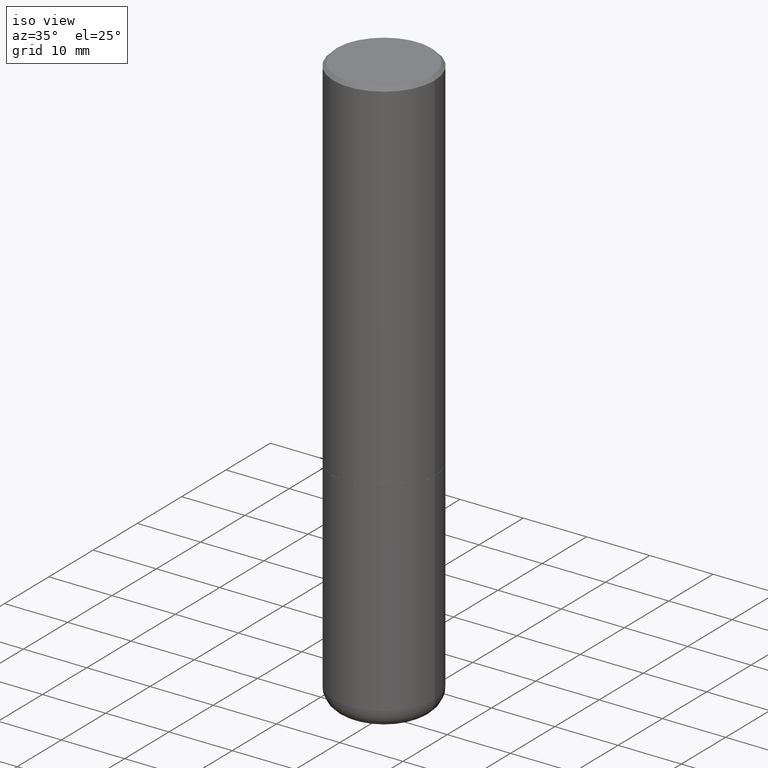
[diagram: clean part render]
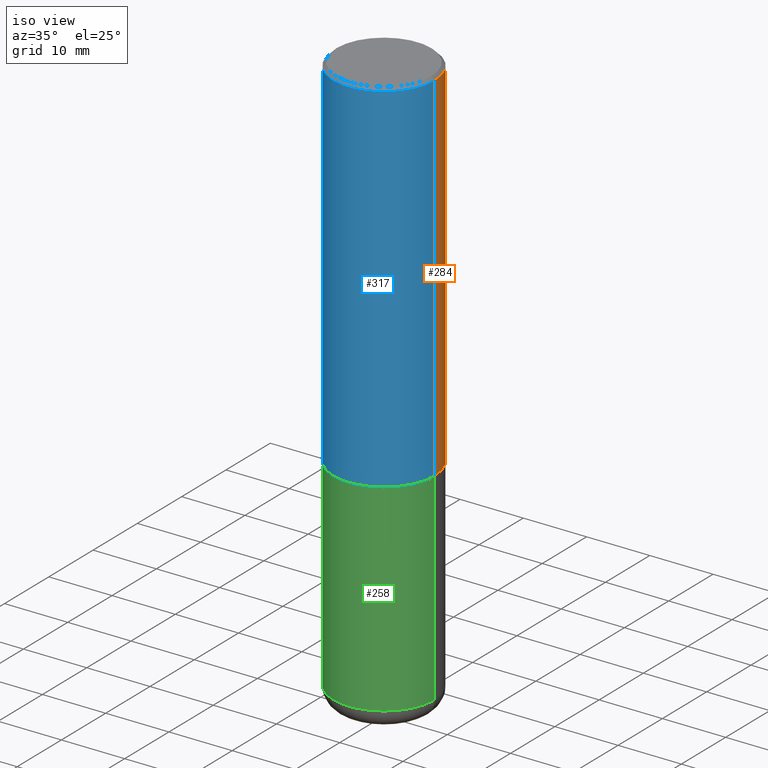
[diagram: same view with three faces highlighted in distinct colors, each labeled with its STEP entity id]
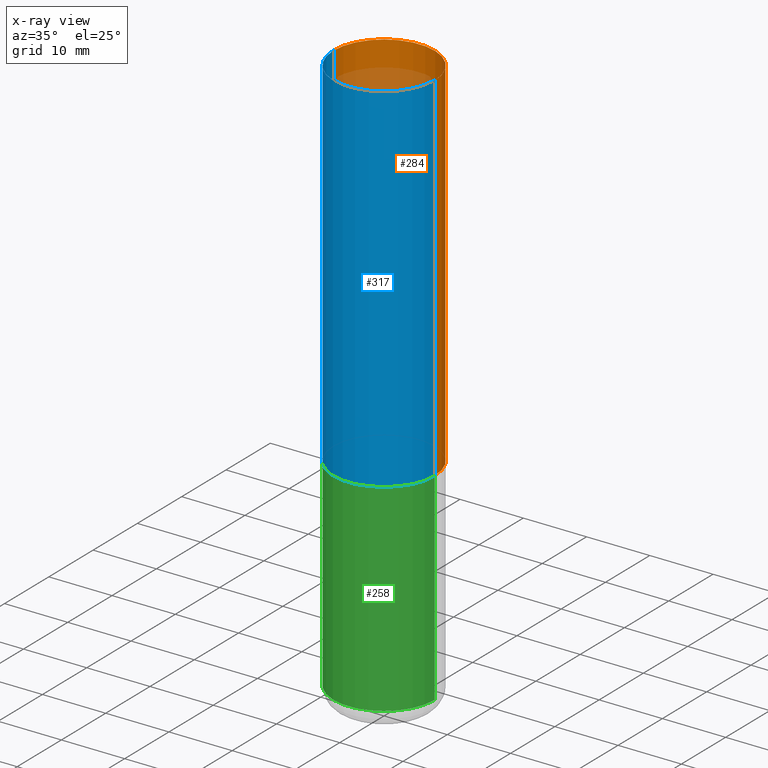
[diagram: x-ray of the same camera — body ghosted, the three highlighted faces saturated]
A machine part, iso view with three faces highlighted in distinct colors.
The next image is the same camera in x-ray (body ghosted, the three faces saturated) — at least one of them is partly hidden behind the body in this view.
Their STEP definitions:

[orange] entity #284 — the highlighted cylindrical surface (partial cylindrical patch) has radius 7.9997 mm, axis along (-0, 0, 1).
#18 = EDGE_CURVE ( 'NONE', #93, #227, #362, .T. ) ;
#27 = DIRECTION ( 'NONE',  ( -2.445468806185136597E-29, 3.491481338843145583E-15, 1.000000000000000000 ) ) ;
#34 = CARTESIAN_POINT ( 'NONE',  ( 0.3149500000000000077, -2.230543471175007450E-15, -0.02000000000000006981 ) ) ;
#62 = CARTESIAN_POINT ( 'NONE',  ( 5.485186532273261485E-29, -7.831392643025175821E-15, -2.242999999999999883 ) ) ;
#74 = DIRECTION ( 'NONE',  ( 1.000000000000000000, -6.982962677686266711E-15, 0.000000000000000000 ) ) ;
#75 = AXIS2_PLACEMENT_3D ( 'NONE', #62, #27, #384 ) ;
#93 = VERTEX_POINT ( 'NONE', #380 ) ;
#97 = DIRECTION ( 'NONE',  ( -2.445468806185136877E-29, 3.491481338843145188E-15, 1.000000000000000000 ) ) ;
#124 = CYLINDRICAL_SURFACE ( 'NONE', #316, 0.3149500000000001743 ) ;
#162 = EDGE_LOOP ( 'NONE', ( #209, #274, #338, #204 ) ) ;
#174 = CARTESIAN_POINT ( 'NONE',  ( -0.3149500000000002853, -1.712756788624580222E-15, -2.242999999999999883 ) ) ;
#177 = LINE ( 'NONE', #261, #183 ) ;
#183 = VECTOR ( 'NONE', #390, 39.37007874015748143 ) ;
#200 = AXIS2_PLACEMENT_3D ( 'NONE', #275, #409, #74 ) ;
#204 = ORIENTED_EDGE ( 'NONE', *, *, #344, .F. ) ;
#209 = ORIENTED_EDGE ( 'NONE', *, *, #18, .T. ) ;
#210 = CIRCLE ( 'NONE', #200, 0.3149500000000000077 ) ;
#227 = VERTEX_POINT ( 'NONE', #174 ) ;
#253 = CARTESIAN_POINT ( 'NONE',  ( 0.3149500000000001743, -2.199284095337290660E-15, 1.535751875536930690E-29 ) ) ;
#261 = CARTESIAN_POINT ( 'NONE',  ( -0.3149500000000001743, 2.237854346276436774E-15, -1.549218606675783237E-29 ) ) ;
#266 = DIRECTION ( 'NONE',  ( -2.445468806185136597E-29, 3.491481338843145583E-15, 1.000000000000000000 ) ) ;
#274 = ORIENTED_EDGE ( 'NONE', *, *, #406, .T. ) ;
#275 = CARTESIAN_POINT ( 'NONE',  ( 4.890937612370289799E-31, -6.982962677686315028E-17, -0.02000000000000006981 ) ) ;
#278 = FACE_OUTER_BOUND ( 'NONE', #162, .T. ) ;
#279 = LINE ( 'NONE', #253, #385 ) ;
#284 = ADVANCED_FACE ( 'NONE', ( #278 ), #124, .T. ) ;
#300 = VERTEX_POINT ( 'NONE', #336 ) ;
#312 = VERTEX_POINT ( 'NONE', #34 ) ;
#316 = AXIS2_PLACEMENT_3D ( 'NONE', #366, #266, #329 ) ;
#329 = DIRECTION ( 'NONE',  ( 1.000000000000000000, -6.982962677686265922E-15, 4.876176775795935232E-29 ) ) ;
#336 = CARTESIAN_POINT ( 'NONE',  ( -0.3149500000000000077, 2.129454468560426573E-15, -0.02000000000000006981 ) ) ;
#338 = ORIENTED_EDGE ( 'NONE', *, *, #381, .F. ) ;
#344 = EDGE_CURVE ( 'NONE', #93, #312, #279, .T. ) ;
#362 = CIRCLE ( 'NONE', #75, 0.3149500000000002853 ) ;
#366 = CARTESIAN_POINT ( 'NONE',  ( 0.000000000000000000, 0.000000000000000000, 0.000000000000000000 ) ) ;
#380 = CARTESIAN_POINT ( 'NONE',  ( 0.3149500000000002853, -1.003067673836246727E-14, -2.242999999999999883 ) ) ;
#381 = EDGE_CURVE ( 'NONE', #312, #300, #210, .T. ) ;
#384 = DIRECTION ( 'NONE',  ( 1.000000000000000000, -6.982962677686267499E-15, 0.000000000000000000 ) ) ;
#385 = VECTOR ( 'NONE', #97, 39.37007874015748143 ) ;
#390 = DIRECTION ( 'NONE',  ( -2.445468806185136877E-29, 3.491481338843145188E-15, 1.000000000000000000 ) ) ;
#406 = EDGE_CURVE ( 'NONE', #227, #300, #177, .T. ) ;
#409 = DIRECTION ( 'NONE',  ( -2.445468806185136597E-29, 3.491481338843145583E-15, 1.000000000000000000 ) ) ;

[blue] entity #317 — the highlighted cylindrical surface (partial cylindrical patch) has radius 7.9997 mm, axis along (-0, 0, 1).
#34 = CARTESIAN_POINT ( 'NONE',  ( 0.3149500000000000077, -2.230543471175007450E-15, -0.02000000000000006981 ) ) ;
#45 = DIRECTION ( 'NONE',  ( -2.445468806185136597E-29, 3.491481338843145583E-15, 1.000000000000000000 ) ) ;
#54 = CARTESIAN_POINT ( 'NONE',  ( 4.890937612370289799E-31, -6.982962677686315028E-17, -0.02000000000000006981 ) ) ;
#93 = VERTEX_POINT ( 'NONE', #380 ) ;
#97 = DIRECTION ( 'NONE',  ( -2.445468806185136877E-29, 3.491481338843145188E-15, 1.000000000000000000 ) ) ;
#117 = DIRECTION ( 'NONE',  ( 1.000000000000000000, -6.982962677686266711E-15, 0.000000000000000000 ) ) ;
#119 = EDGE_LOOP ( 'NONE', ( #224, #371, #167, #416 ) ) ;
#133 = CIRCLE ( 'NONE', #216, 0.3149500000000002853 ) ;
#151 = AXIS2_PLACEMENT_3D ( 'NONE', #248, #375, #379 ) ;
#167 = ORIENTED_EDGE ( 'NONE', *, *, #344, .T. ) ;
#171 = DIRECTION ( 'NONE',  ( 1.000000000000000000, -6.982962677686267499E-15, 0.000000000000000000 ) ) ;
#174 = CARTESIAN_POINT ( 'NONE',  ( -0.3149500000000002853, -1.712756788624580222E-15, -2.242999999999999883 ) ) ;
#177 = LINE ( 'NONE', #261, #183 ) ;
#179 = DIRECTION ( 'NONE',  ( -2.445468806185136597E-29, 3.491481338843145583E-15, 1.000000000000000000 ) ) ;
#183 = VECTOR ( 'NONE', #390, 39.37007874015748143 ) ;
#199 = EDGE_CURVE ( 'NONE', #227, #93, #133, .T. ) ;
#216 = AXIS2_PLACEMENT_3D ( 'NONE', #326, #45, #171 ) ;
#224 = ORIENTED_EDGE ( 'NONE', *, *, #406, .F. ) ;
#227 = VERTEX_POINT ( 'NONE', #174 ) ;
#248 = CARTESIAN_POINT ( 'NONE',  ( 0.000000000000000000, 0.000000000000000000, 0.000000000000000000 ) ) ;
#253 = CARTESIAN_POINT ( 'NONE',  ( 0.3149500000000001743, -2.199284095337290660E-15, 1.535751875536930690E-29 ) ) ;
#261 = CARTESIAN_POINT ( 'NONE',  ( -0.3149500000000001743, 2.237854346276436774E-15, -1.549218606675783237E-29 ) ) ;
#276 = CYLINDRICAL_SURFACE ( 'NONE', #151, 0.3149500000000001743 ) ;
#279 = LINE ( 'NONE', #253, #385 ) ;
#300 = VERTEX_POINT ( 'NONE', #336 ) ;
#301 = EDGE_CURVE ( 'NONE', #300, #312, #323, .T. ) ;
#312 = VERTEX_POINT ( 'NONE', #34 ) ;
#317 = ADVANCED_FACE ( 'NONE', ( #343 ), #276, .T. ) ;
#323 = CIRCLE ( 'NONE', #370, 0.3149500000000000077 ) ;
#326 = CARTESIAN_POINT ( 'NONE',  ( 5.485186532273261485E-29, -7.831392643025175821E-15, -2.242999999999999883 ) ) ;
#336 = CARTESIAN_POINT ( 'NONE',  ( -0.3149500000000000077, 2.129454468560426573E-15, -0.02000000000000006981 ) ) ;
#343 = FACE_OUTER_BOUND ( 'NONE', #119, .T. ) ;
#344 = EDGE_CURVE ( 'NONE', #93, #312, #279, .T. ) ;
#370 = AXIS2_PLACEMENT_3D ( 'NONE', #54, #179, #117 ) ;
#371 = ORIENTED_EDGE ( 'NONE', *, *, #199, .T. ) ;
#375 = DIRECTION ( 'NONE',  ( -2.445468806185136597E-29, 3.491481338843145583E-15, 1.000000000000000000 ) ) ;
#379 = DIRECTION ( 'NONE',  ( 1.000000000000000000, -6.982962677686265922E-15, 4.876176775795935232E-29 ) ) ;
#380 = CARTESIAN_POINT ( 'NONE',  ( 0.3149500000000002853, -1.003067673836246727E-14, -2.242999999999999883 ) ) ;
#385 = VECTOR ( 'NONE', #97, 39.37007874015748143 ) ;
#390 = DIRECTION ( 'NONE',  ( -2.445468806185136877E-29, 3.491481338843145188E-15, 1.000000000000000000 ) ) ;
#406 = EDGE_CURVE ( 'NONE', #227, #300, #177, .T. ) ;
#416 = ORIENTED_EDGE ( 'NONE', *, *, #301, .F. ) ;

[green] entity #258 — the highlighted cylindrical surface (partial cylindrical patch) has radius 7.9997 mm, axis along (-0, 0, 1).
#40 = DIRECTION ( 'NONE',  ( -2.445468806185136597E-29, 3.491481338843145583E-15, 1.000000000000000000 ) ) ;
#44 = DIRECTION ( 'NONE',  ( -2.445468806185136877E-29, 3.491481338843145188E-15, 1.000000000000000000 ) ) ;
#55 = VERTEX_POINT ( 'NONE', #218 ) ;
#58 = AXIS2_PLACEMENT_3D ( 'NONE', #310, #40, #123 ) ;
#66 = DIRECTION ( 'NONE',  ( -2.445468806185136877E-29, 3.491481338843145188E-15, 1.000000000000000000 ) ) ;
#77 = CARTESIAN_POINT ( 'NONE',  ( 0.000000000000000000, 0.000000000000000000, 0.000000000000000000 ) ) ;
#83 = EDGE_CURVE ( 'NONE', #353, #378, #369, .T. ) ;
#86 = CIRCLE ( 'NONE', #159, 0.3149500000000000077 ) ;
#87 = VECTOR ( 'NONE', #44, 39.37007874015748143 ) ;
#101 = AXIS2_PLACEMENT_3D ( 'NONE', #77, #411, #327 ) ;
#104 = CARTESIAN_POINT ( 'NONE',  ( -0.3149500000000000077, -7.796488447491823147E-15, -2.243999999999999773 ) ) ;
#107 = VECTOR ( 'NONE', #66, 39.37007874015748143 ) ;
#123 = DIRECTION ( 'NONE',  ( 1.000000000000000000, -6.982962677686266711E-15, 0.000000000000000000 ) ) ;
#125 = EDGE_CURVE ( 'NONE', #55, #353, #220, .T. ) ;
#127 = DIRECTION ( 'NONE',  ( -2.445468806185136597E-29, 3.491481338843145583E-15, 1.000000000000000000 ) ) ;
#128 = EDGE_CURVE ( 'NONE', #55, #414, #86, .T. ) ;
#137 = CYLINDRICAL_SURFACE ( 'NONE', #101, 0.3149500000000000077 ) ;
#139 = CARTESIAN_POINT ( 'NONE',  ( 0.3149499999999998967, -1.443308555850978615E-14, -3.503899999999999793 ) ) ;
#153 = ORIENTED_EDGE ( 'NONE', *, *, #128, .T. ) ;
#159 = AXIS2_PLACEMENT_3D ( 'NONE', #161, #127, #260 ) ;
#161 = CARTESIAN_POINT ( 'NONE',  ( 8.568678149992099474E-29, -1.223380146317249786E-14, -3.503899999999999793 ) ) ;
#188 = ORIENTED_EDGE ( 'NONE', *, *, #355, .T. ) ;
#218 = CARTESIAN_POINT ( 'NONE',  ( -0.3149499999999998967, -9.995947116896063452E-15, -3.503899999999999793 ) ) ;
#220 = LINE ( 'NONE', #287, #107 ) ;
#228 = CARTESIAN_POINT ( 'NONE',  ( 0.3149500000000000077, -2.199284095337289871E-15, 1.535751875536930130E-29 ) ) ;
#258 = ADVANCED_FACE ( 'NONE', ( #288 ), #137, .T. ) ;
#260 = DIRECTION ( 'NONE',  ( 1.000000000000000000, -6.982962677686263555E-15, 0.000000000000000000 ) ) ;
#286 = CARTESIAN_POINT ( 'NONE',  ( 0.3149500000000000077, -1.003416821970130712E-14, -2.243999999999999773 ) ) ;
#287 = CARTESIAN_POINT ( 'NONE',  ( -0.3149500000000000077, 2.237854346276435590E-15, -1.549218606675782676E-29 ) ) ;
#288 = FACE_OUTER_BOUND ( 'NONE', #341, .T. ) ;
#310 = CARTESIAN_POINT ( 'NONE',  ( 5.487632001079445967E-29, -7.834884124364017250E-15, -2.243999999999999773 ) ) ;
#322 = ORIENTED_EDGE ( 'NONE', *, *, #125, .F. ) ;
#327 = DIRECTION ( 'NONE',  ( 1.000000000000000000, -6.982962677686266711E-15, 4.876176775795936353E-29 ) ) ;
#333 = ORIENTED_EDGE ( 'NONE', *, *, #83, .F. ) ;
#341 = EDGE_LOOP ( 'NONE', ( #322, #153, #188, #333 ) ) ;
#353 = VERTEX_POINT ( 'NONE', #104 ) ;
#355 = EDGE_CURVE ( 'NONE', #414, #378, #417, .T. ) ;
#369 = CIRCLE ( 'NONE', #58, 0.3149500000000000077 ) ;
#378 = VERTEX_POINT ( 'NONE', #286 ) ;
#411 = DIRECTION ( 'NONE',  ( -2.445468806185136597E-29, 3.491481338843145583E-15, 1.000000000000000000 ) ) ;
#414 = VERTEX_POINT ( 'NONE', #139 ) ;
#417 = LINE ( 'NONE', #228, #87 ) ;